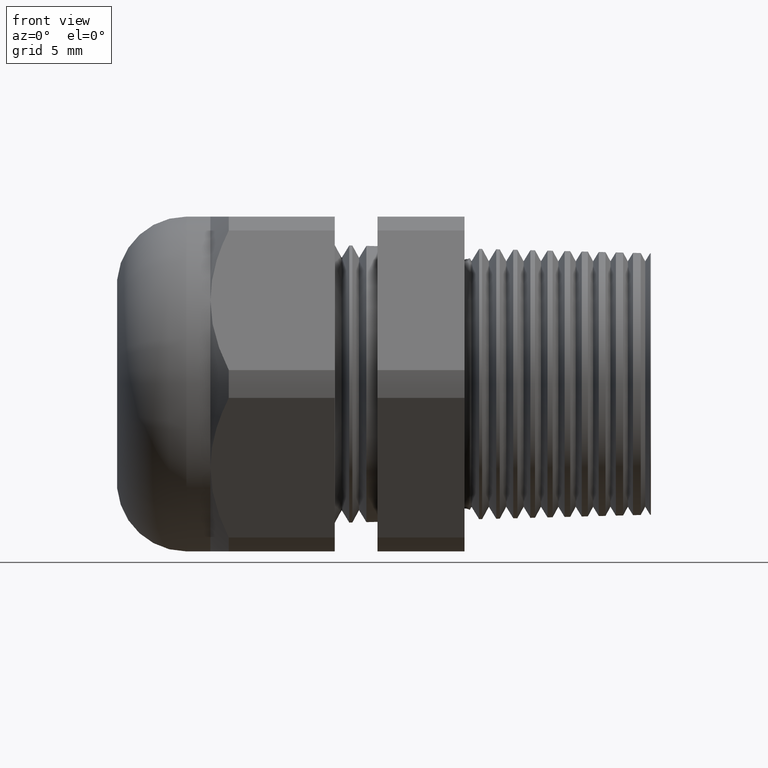
[diagram: clean part render]
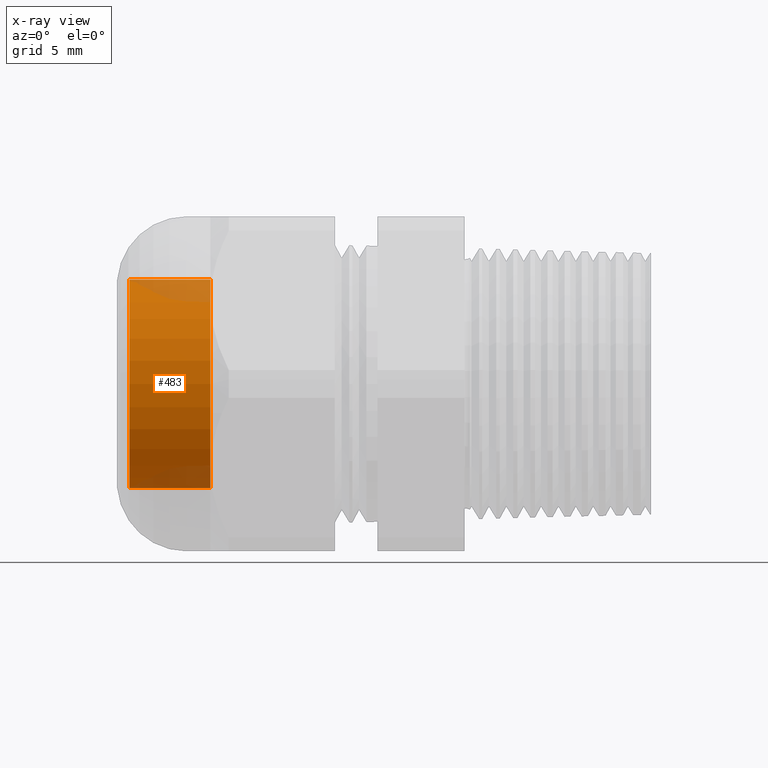
[diagram: x-ray — body ghosted, one internal face saturated and labeled with its STEP entity id]
A machine part, front view, then the same camera in x-ray: the body is ghosted and one INTERNAL B-rep face — a face not visible from any outside direction — is saturated and labeled: STEP entity #483.
In plain terms, the highlighted cylindrical surface (partial cylindrical patch) has radius 8.382 mm, axis along (1, 0, 0).
Its self-contained STEP definition (entity closure, byte-faithful):
#417 = EDGE_CURVE ( 'NONE', #435, #418, #1901, .T. ) ;
#418 = VERTEX_POINT ( 'NONE', #1894 ) ;
#421 = VERTEX_POINT ( 'NONE', #1888 ) ;
#423 = EDGE_CURVE ( 'NONE', #438, #421, #1887, .T. ) ;
#435 = VERTEX_POINT ( 'NONE', #1918 ) ;
#438 = VERTEX_POINT ( 'NONE', #1975 ) ;
#478 = EDGE_CURVE ( 'NONE', #418, #421, #1985, .T. ) ;
#483 = ADVANCED_FACE ( 'NONE', ( #2039 ), #2038, .T. ) ;
#484 = EDGE_LOOP ( 'NONE', ( #485, #486, #488, #489 ) ) ;
#485 = ORIENTED_EDGE ( 'NONE', *, *, #417, .F. ) ;
#486 = ORIENTED_EDGE ( 'NONE', *, *, #487, .T. ) ;
#487 = EDGE_CURVE ( 'NONE', #435, #438, #2037, .T. ) ;
#488 = ORIENTED_EDGE ( 'NONE', *, *, #423, .T. ) ;
#489 = ORIENTED_EDGE ( 'NONE', *, *, #478, .F. ) ;
#1884 = DIRECTION ( 'NONE',  ( 1.000000000000000000, 0.0000000000000000000, 0.0000000000000000000 ) ) ;
#1885 = VECTOR ( 'NONE', #1884, 39.37007874015748100 ) ;
#1886 = CARTESIAN_POINT ( 'NONE',  ( 0.0000000000000000000, 0.0000000000000000000, -0.3300000000000000200 ) ) ;
#1887 = LINE ( 'NONE', #1886, #1885 ) ;
#1888 = CARTESIAN_POINT ( 'NONE',  ( -1.114724409448818700, 0.0000000000000000000, -0.3300000000000000200 ) ) ;
#1894 = CARTESIAN_POINT ( 'NONE',  ( -1.114724409448818700, 4.041334437186265900E-017, 0.3300000000000000200 ) ) ;
#1895 = DIRECTION ( 'NONE',  ( 1.000000000000000000, 0.0000000000000000000, 0.0000000000000000000 ) ) ;
#1896 = VECTOR ( 'NONE', #1895, 39.37007874015748100 ) ;
#1897 = CARTESIAN_POINT ( 'NONE',  ( 0.0000000000000000000, 4.041334437186265900E-017, 0.3300000000000000200 ) ) ;
#1901 = LINE ( 'NONE', #1897, #1896 ) ;
#1918 = CARTESIAN_POINT ( 'NONE',  ( -1.371000000000000000, 4.041334437186265900E-017, 0.3300000000000000200 ) ) ;
#1975 = CARTESIAN_POINT ( 'NONE',  ( -1.371000000000000000, 0.0000000000000000000, -0.3300000000000000200 ) ) ;
#1981 = DIRECTION ( 'NONE',  ( 0.0000000000000000000, 0.0000000000000000000, -1.000000000000000000 ) ) ;
#1982 = DIRECTION ( 'NONE',  ( 1.000000000000000000, 0.0000000000000000000, 0.0000000000000000000 ) ) ;
#1983 = CARTESIAN_POINT ( 'NONE',  ( -1.114724409448818700, 0.0000000000000000000, 0.0000000000000000000 ) ) ;
#1984 = AXIS2_PLACEMENT_3D ( 'NONE', #1983, #1982, #1981 ) ;
#1985 = CIRCLE ( 'NONE', #1984, 0.3300000000000000200 ) ;
#2029 = DIRECTION ( 'NONE',  ( 0.0000000000000000000, 0.0000000000000000000, -1.000000000000000000 ) ) ;
#2030 = DIRECTION ( 'NONE',  ( 1.000000000000000000, 0.0000000000000000000, 0.0000000000000000000 ) ) ;
#2031 = CARTESIAN_POINT ( 'NONE',  ( -1.371000000000000000, 0.0000000000000000000, 0.0000000000000000000 ) ) ;
#2032 = AXIS2_PLACEMENT_3D ( 'NONE', #2031, #2030, #2029 ) ;
#2033 = DIRECTION ( 'NONE',  ( 0.0000000000000000000, 0.0000000000000000000, -1.000000000000000000 ) ) ;
#2034 = DIRECTION ( 'NONE',  ( 1.000000000000000000, 0.0000000000000000000, 0.0000000000000000000 ) ) ;
#2035 = CARTESIAN_POINT ( 'NONE',  ( 0.0000000000000000000, 0.0000000000000000000, 0.0000000000000000000 ) ) ;
#2036 = AXIS2_PLACEMENT_3D ( 'NONE', #2035, #2034, #2033 ) ;
#2037 = CIRCLE ( 'NONE', #2032, 0.3300000000000000200 ) ;
#2038 = CYLINDRICAL_SURFACE ( 'NONE', #2036, 0.3300000000000000200 ) ;
#2039 = FACE_OUTER_BOUND ( 'NONE', #484, .T. ) ;